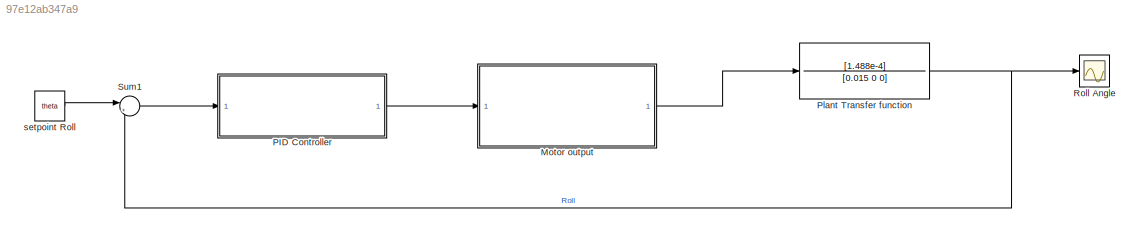
MODEL slx_97e12ab347a9
KIND model
CONFIG AbsTol = auto
CONFIG EnableMultiTasking = off
CONFIG FixedStep = auto
CONFIG MaxStep = auto
CONFIG MinStep = auto
CONFIG RelTol = 1e-3
CONFIG SampleTimeConstraint = Unconstrained
CONFIG SolverName = VariableStepAuto
CONFIG StartTime = 0.0
CONFIG StopTime = simt
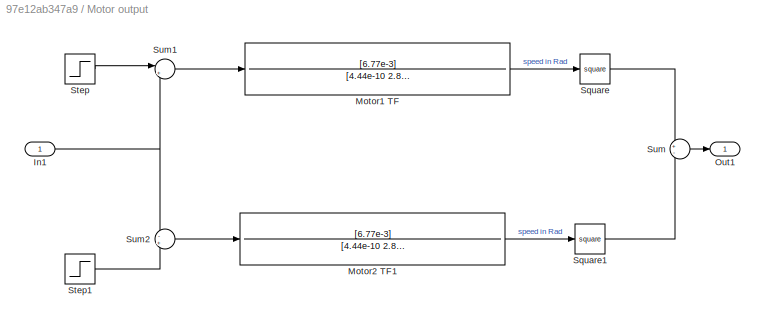
BLOCK [SubSystem] Motor output
BLOCK [TransferFcn] Motor output/ Motor1 TF
  Denominator = [4.44e-10 2.886e-7 4.5833e-5]
  Numerator = [6.77e-3]
BLOCK [TransferFcn] Motor output/ Motor2 TF1
  Denominator = [4.44e-10 2.886e-7 4.5833e-5]
  Numerator = [6.77e-3]
BLOCK [Inport] Motor output/In1
BLOCK [Outport] Motor output/Out1
BLOCK [Math] Motor output/Square
  Operator = square
BLOCK [Math] Motor output/Square1
  Operator = square
BLOCK [Step] Motor output/Step
  SampleTime = 0
BLOCK [Step] Motor output/Step1
  SampleTime = 0
BLOCK [Sum] Motor output/Sum
  Inputs = +-
BLOCK [Sum] Motor output/Sum1
  Inputs = |++
BLOCK [Sum] Motor output/Sum2
  Inputs = -+
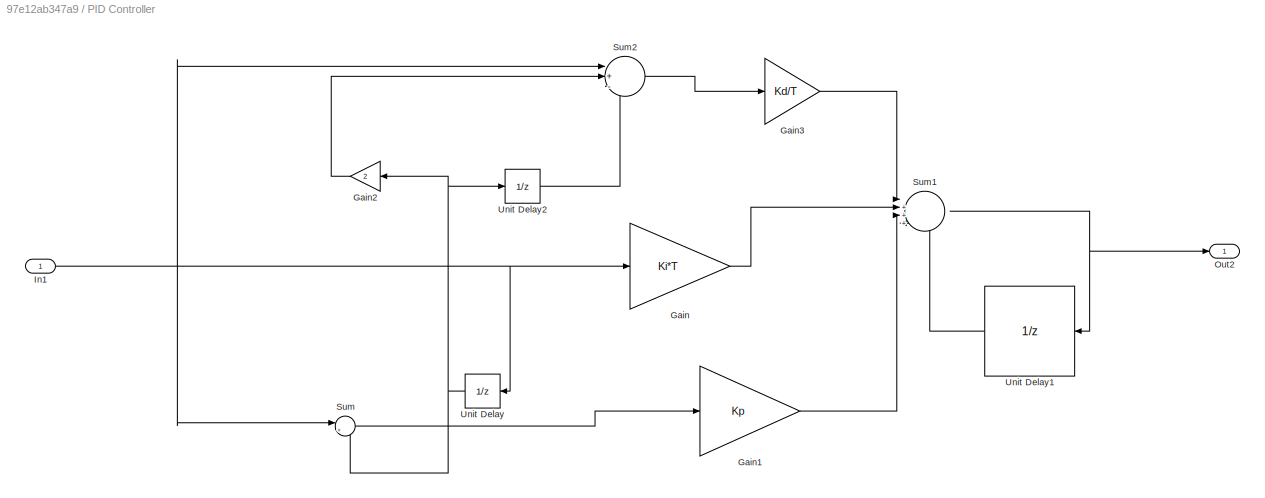
BLOCK [SubSystem] PID Controller
BLOCK [Gain] PID Controller/Gain
  Gain = Ki*T
BLOCK [Gain] PID Controller/Gain1
  Gain = Kp
BLOCK [Gain] PID Controller/Gain2
  Gain = 2
  NameLocation = top
BLOCK [Gain] PID Controller/Gain3
  Gain = Kd/T
BLOCK [Inport] PID Controller/In1
BLOCK [Outport] PID Controller/Out2
BLOCK [Sum] PID Controller/Sum
  Inputs = |+-
BLOCK [Sum] PID Controller/Sum1
  Inputs = |++++
BLOCK [Sum] PID Controller/Sum2
  Inputs = |+-+
BLOCK [UnitDelay] PID Controller/Unit Delay
  HasFrameUpgradeWarning = on
  NameLocation = top
  SampleTime = -1
BLOCK [UnitDelay] PID Controller/Unit Delay1
  HasFrameUpgradeWarning = on
  NameLocation = top
  SampleTime = -1
BLOCK [UnitDelay] PID Controller/Unit Delay2
  HasFrameUpgradeWarning = on
  SampleTime = -1
BLOCK [TransferFcn] Plant Transfer function
  Denominator = [0.015 0 0]
  Numerator = [1.488e-4]
BLOCK [Scope] Roll Angle
  Floating = off
  NumInputPorts = 1
  ScopeSpecificationString = Simulink.scopes.TimeScopeBlockCfg('CurrentConfiguration', extmgr.ConfigurationSet(extmgr.Configuration('Core','General UI',true,'FigureColor',[1 1 1]),extmgr.Configuration('Core','Source UI',true),extmgr.Configuration('Sources','WiredSimulink',true),extmgr.Configuration('Visuals','Time Domain',true,'SerializedDisplays',{struct('MinYLimReal','-566094.03024','MaxYLimReal','862608.20722','YLabelReal'...<+1531ch>
BLOCK [Sum] Sum1
  Inputs = |+-
BLOCK [Constant] setpoint Roll
  Value = theta
LINE Motor output/ Motor1 TF:1 -> Motor output/Square:1
LINE Motor output/ Motor2 TF1:1 -> Motor output/Square1:1
NET Motor output/In1:1 -> Motor output/Sum1:2, Motor output/Sum2:1
LINE Motor output/Square1:1 -> Motor output/Sum:2
LINE Motor output/Square:1 -> Motor output/Sum:1
LINE Motor output/Step1:1 -> Motor output/Sum2:2
LINE Motor output/Step:1 -> Motor output/Sum1:1
LINE Motor output/Sum1:1 -> Motor output/ Motor1 TF:1
LINE Motor output/Sum2:1 -> Motor output/ Motor2 TF1:1
LINE Motor output/Sum:1 -> Motor output/Out1:1
LINE Motor output:1 -> Plant Transfer function:1
LINE PID Controller/Gain1:1 -> PID Controller/Sum1:3
LINE PID Controller/Gain2:1 -> PID Controller/Sum2:2
LINE PID Controller/Gain3:1 -> PID Controller/Sum1:1
LINE PID Controller/Gain:1 -> PID Controller/Sum1:2
NET PID Controller/In1:1 -> PID Controller/Gain:1, PID Controller/Sum2:1, PID Controller/Sum:1, PID Controller/Unit Delay:1
NET PID Controller/Sum1:1 -> PID Controller/Out2:1, PID Controller/Unit Delay1:1
LINE PID Controller/Sum2:1 -> PID Controller/Gain3:1
LINE PID Controller/Sum:1 -> PID Controller/Gain1:1
LINE PID Controller/Unit Delay1:1 -> PID Controller/Sum1:4
LINE PID Controller/Unit Delay2:1 -> PID Controller/Sum2:3
NET PID Controller/Unit Delay:1 -> PID Controller/Gain2:1, PID Controller/Sum:2, PID Controller/Unit Delay2:1
LINE PID Controller:1 -> Motor output:1
NET Plant Transfer function:1 -> Roll Angle:1, Sum1:2
LINE Sum1:1 -> PID Controller:1
LINE setpoint Roll:1 -> Sum1:1
note: NET lines group one-source signal fan-out (src -> all destinations, sorted); 1:1 wires keep LINE
